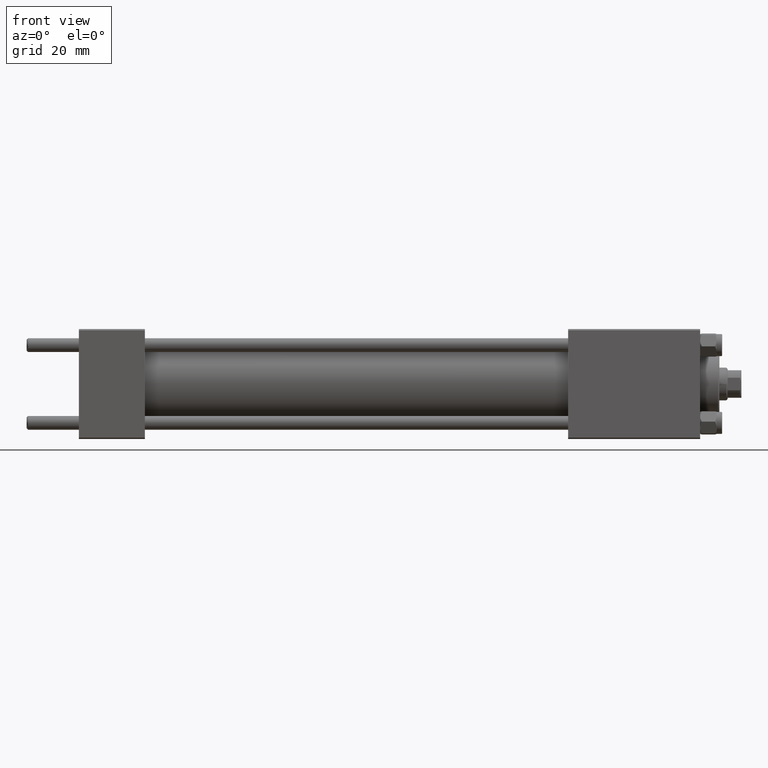
[diagram: clean part render]
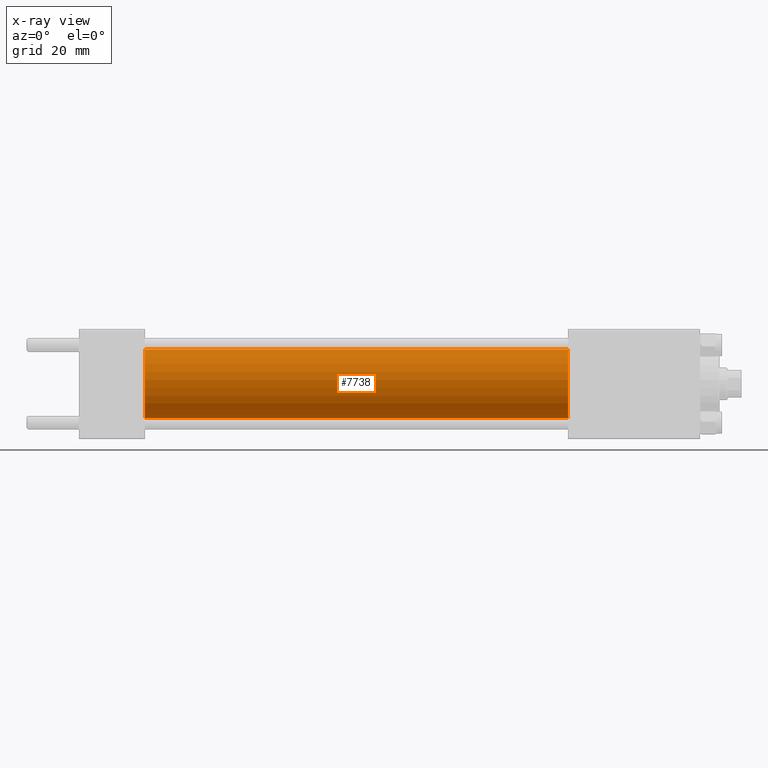
[diagram: x-ray — body ghosted, one internal face saturated and labeled with its STEP entity id]
A machine part, front view, then the same camera in x-ray: the body is ghosted and one INTERNAL B-rep face — a face not visible from any outside direction — is saturated and labeled: STEP entity #7738.
In plain terms, the highlighted cylindrical surface (edge-blend (fillet) strip) has radius 12.5 mm, axis along (-1, -0, -0).
Its self-contained STEP definition (entity closure, byte-faithful):
#126 = DIRECTION ( 'NONE',  ( 1.000000000000000000, 0.000000000000000000, 0.000000000000000000 ) ) ;
#541 = CARTESIAN_POINT ( 'NONE',  ( 178.0000000000000000, 1.530808498934191127E-15, -12.49999999999999645 ) ) ;
#2868 = DIRECTION ( 'NONE',  ( -1.000000000000000000, -0.000000000000000000, -0.000000000000000000 ) ) ;
#3664 = DIRECTION ( 'NONE',  ( 0.000000000000000000, 0.000000000000000000, -1.000000000000000000 ) ) ;
#4271 = CIRCLE ( 'NONE', #30031, 12.49999999999999645 ) ;
#5400 = DIRECTION ( 'NONE',  ( 0.000000000000000000, 0.000000000000000000, 1.000000000000000000 ) ) ;
#6538 = EDGE_CURVE ( 'NONE', #21454, #14916, #21147, .T. ) ;
#6661 = ORIENTED_EDGE ( 'NONE', *, *, #6538, .F. ) ;
#7615 = EDGE_CURVE ( 'NONE', #14916, #20160, #41138, .T. ) ;
#7738 = ADVANCED_FACE ( 'NONE', ( #44274 ), #13481, .F. ) ;
#8302 = CARTESIAN_POINT ( 'NONE',  ( 24.00000000000000000, 0.000000000000000000, 12.49999999999999645 ) ) ;
#9126 = VECTOR ( 'NONE', #2868, 1000.000000000000000 ) ;
#9787 = CARTESIAN_POINT ( 'NONE',  ( 178.0000000000000000, 0.000000000000000000, 12.49999999999999645 ) ) ;
#11085 = CARTESIAN_POINT ( 'NONE',  ( 178.0000000000000000, 0.000000000000000000, 0.000000000000000000 ) ) ;
#12945 = EDGE_CURVE ( 'NONE', #21454, #49344, #4271, .T. ) ;
#13481 = CYLINDRICAL_SURFACE ( 'NONE', #37122, 12.49999999999999645 ) ;
#14916 = VERTEX_POINT ( 'NONE', #8302 ) ;
#18633 = DIRECTION ( 'NONE',  ( 0.000000000000000000, 0.000000000000000000, -1.000000000000000000 ) ) ;
#18887 = DIRECTION ( 'NONE',  ( 1.000000000000000000, 0.000000000000000000, 0.000000000000000000 ) ) ;
#20160 = VERTEX_POINT ( 'NONE', #35233 ) ;
#21147 = LINE ( 'NONE', #9787, #30657 ) ;
#21454 = VERTEX_POINT ( 'NONE', #48293 ) ;
#24295 = CARTESIAN_POINT ( 'NONE',  ( 178.0000000000000000, 1.530808498934191127E-15, -12.49999999999999645 ) ) ;
#24836 = CARTESIAN_POINT ( 'NONE',  ( 178.0000000000000000, 0.000000000000000000, 0.000000000000000000 ) ) ;
#26888 = CARTESIAN_POINT ( 'NONE',  ( 24.00000000000000000, 0.000000000000000000, 0.000000000000000000 ) ) ;
#28375 = DIRECTION ( 'NONE',  ( -1.000000000000000000, -0.000000000000000000, -0.000000000000000000 ) ) ;
#29204 = ORIENTED_EDGE ( 'NONE', *, *, #7615, .F. ) ;
#30031 = AXIS2_PLACEMENT_3D ( 'NONE', #11085, #18887, #18633 ) ;
#30311 = ORIENTED_EDGE ( 'NONE', *, *, #12945, .T. ) ;
#30657 = VECTOR ( 'NONE', #44627, 1000.000000000000000 ) ;
#33890 = EDGE_LOOP ( 'NONE', ( #30311, #45247, #29204, #6661 ) ) ;
#35233 = CARTESIAN_POINT ( 'NONE',  ( 24.00000000000000000, 1.530808498934191127E-15, -12.49999999999999645 ) ) ;
#37122 = AXIS2_PLACEMENT_3D ( 'NONE', #24836, #28375, #5400 ) ;
#38904 = LINE ( 'NONE', #541, #9126 ) ;
#39718 = EDGE_CURVE ( 'NONE', #49344, #20160, #38904, .T. ) ;
#41138 = CIRCLE ( 'NONE', #45176, 12.49999999999999645 ) ;
#44274 = FACE_OUTER_BOUND ( 'NONE', #33890, .T. ) ;
#44627 = DIRECTION ( 'NONE',  ( -1.000000000000000000, -0.000000000000000000, -0.000000000000000000 ) ) ;
#45176 = AXIS2_PLACEMENT_3D ( 'NONE', #26888, #126, #3664 ) ;
#45247 = ORIENTED_EDGE ( 'NONE', *, *, #39718, .T. ) ;
#48293 = CARTESIAN_POINT ( 'NONE',  ( 178.0000000000000000, 0.000000000000000000, 12.49999999999999645 ) ) ;
#49344 = VERTEX_POINT ( 'NONE', #24295 ) ;